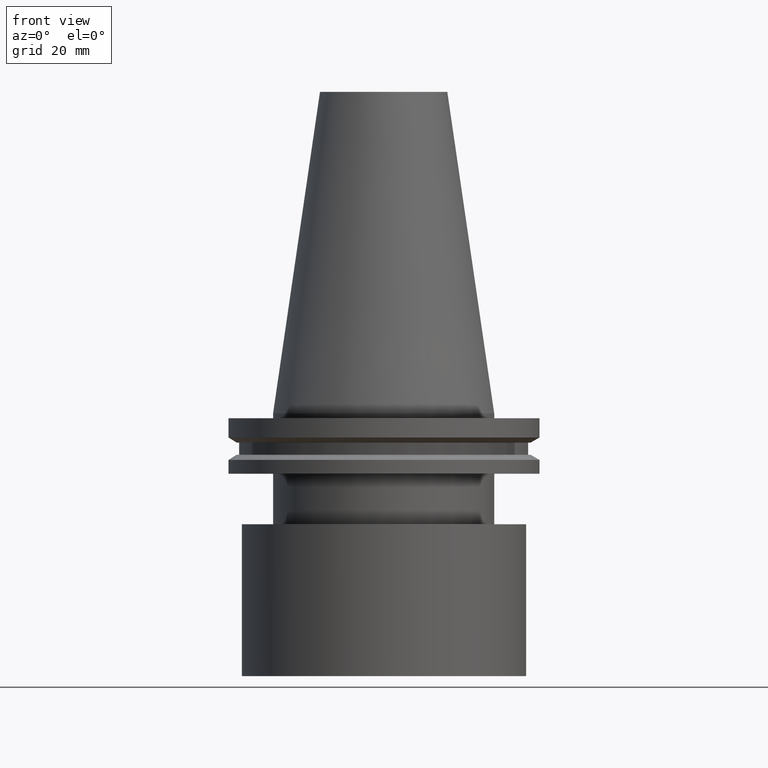
[diagram: clean part render]
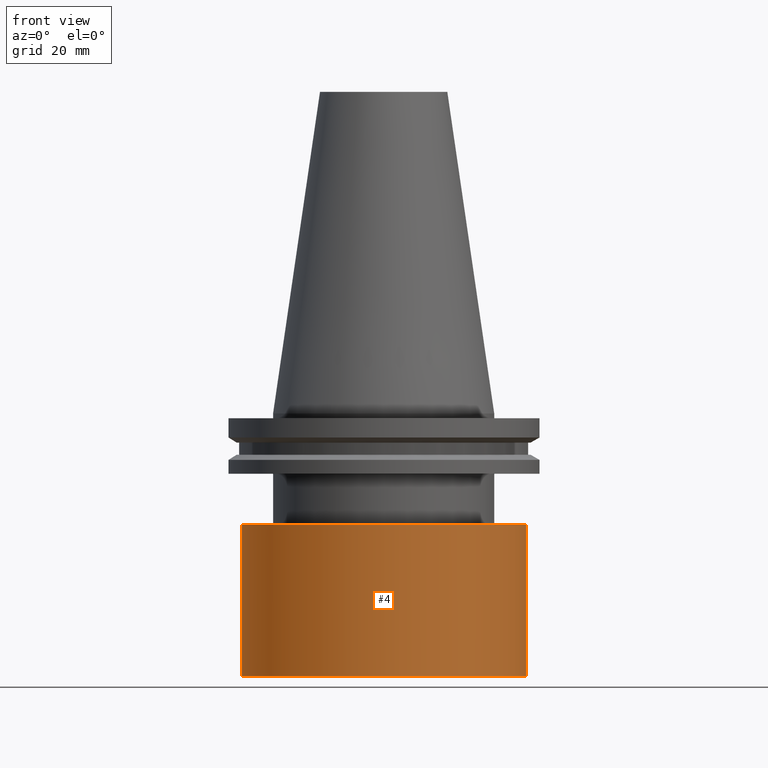
[diagram: same view with one face highlighted and labeled with its STEP entity id]
A machine part, front view. The second image highlights one B-rep face of the part: STEP entity #4.
In plain terms, the highlighted cylindrical surface (bore or boss wall) has radius 45 mm, axis along (-0, -0, 1).
Its self-contained STEP definition (entity closure, byte-faithful):
#4 = ADVANCED_FACE ( 'NONE', ( #145, #353 ), #290, .T. ) ;
#11 = CIRCLE ( 'NONE', #64, 45.00000000000000000 ) ;
#40 = ORIENTED_EDGE ( 'NONE', *, *, #211, .F. ) ;
#43 = VERTEX_POINT ( 'NONE', #377 ) ;
#45 = EDGE_LOOP ( 'NONE', ( #40 ) ) ;
#57 = CARTESIAN_POINT ( 'NONE',  ( 0.000000000000000000, 0.000000000000000000, -35.00000000000000000 ) ) ;
#64 = AXIS2_PLACEMENT_3D ( 'NONE', #308, #334, #126 ) ;
#70 = VERTEX_POINT ( 'NONE', #143 ) ;
#126 = DIRECTION ( 'NONE',  ( 1.000000000000000000, 0.000000000000000000, 0.000000000000000000 ) ) ;
#143 = CARTESIAN_POINT ( 'NONE',  ( 45.00000000000000000, 0.000000000000000000, -83.00000000000000000 ) ) ;
#145 = FACE_OUTER_BOUND ( 'NONE', #45, .T. ) ;
#148 = DIRECTION ( 'NONE',  ( 1.000000000000000000, 0.000000000000000000, 0.000000000000000000 ) ) ;
#178 = CARTESIAN_POINT ( 'NONE',  ( 0.000000000000000000, 0.000000000000000000, 0.000000000000000000 ) ) ;
#180 = DIRECTION ( 'NONE',  ( -0.000000000000000000, -0.000000000000000000, 1.000000000000000000 ) ) ;
#183 = AXIS2_PLACEMENT_3D ( 'NONE', #57, #180, #299 ) ;
#211 = EDGE_CURVE ( 'NONE', #43, #43, #245, .T. ) ;
#215 = DIRECTION ( 'NONE',  ( -0.000000000000000000, -0.000000000000000000, 1.000000000000000000 ) ) ;
#245 = CIRCLE ( 'NONE', #183, 45.00000000000000000 ) ;
#289 = ORIENTED_EDGE ( 'NONE', *, *, #292, .T. ) ;
#290 = CYLINDRICAL_SURFACE ( 'NONE', #344, 45.00000000000000000 ) ;
#292 = EDGE_CURVE ( 'NONE', #70, #70, #11, .T. ) ;
#299 = DIRECTION ( 'NONE',  ( 1.000000000000000000, 0.000000000000000000, 0.000000000000000000 ) ) ;
#308 = CARTESIAN_POINT ( 'NONE',  ( 0.000000000000000000, 0.000000000000000000, -83.00000000000000000 ) ) ;
#334 = DIRECTION ( 'NONE',  ( -0.000000000000000000, -0.000000000000000000, 1.000000000000000000 ) ) ;
#338 = EDGE_LOOP ( 'NONE', ( #289 ) ) ;
#344 = AXIS2_PLACEMENT_3D ( 'NONE', #178, #215, #148 ) ;
#353 = FACE_OUTER_BOUND ( 'NONE', #338, .T. ) ;
#377 = CARTESIAN_POINT ( 'NONE',  ( 45.00000000000000000, 0.000000000000000000, -35.00000000000000000 ) ) ;